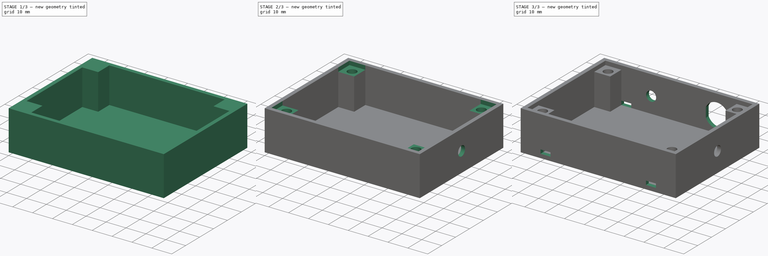
[diagram: build sequence overview — one tinted view per stage of 3, left to right]
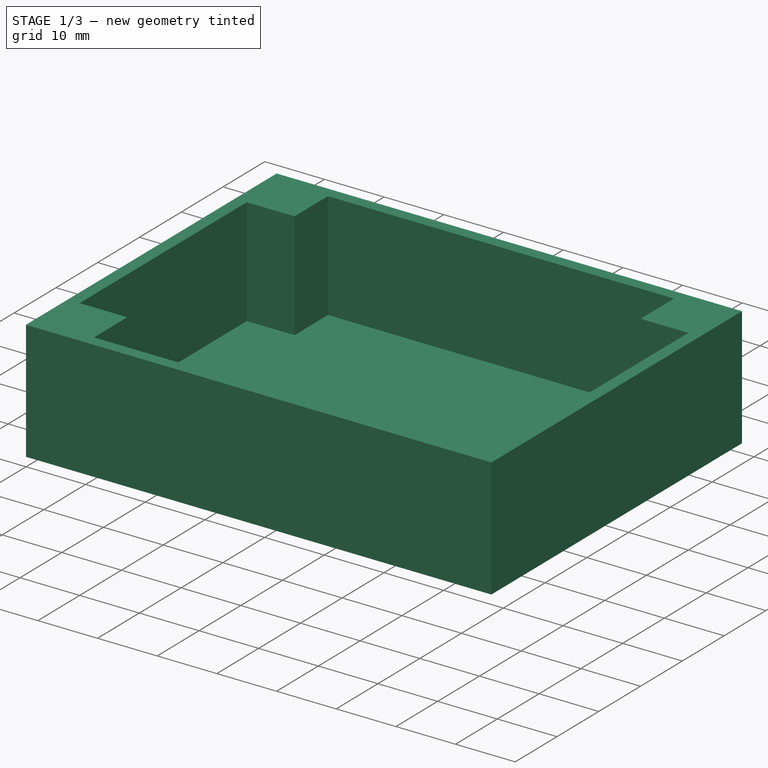
[diagram: stage 1 of 3 — iso view after this stage's code; geometry added in this stage tinted green]
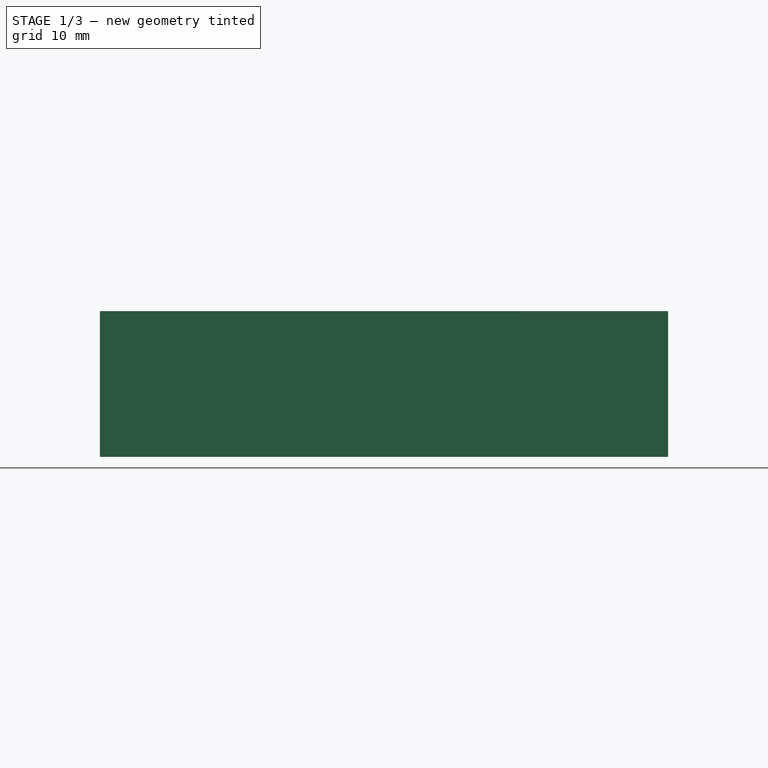
[diagram: stage 1 of 3 — front view after this stage's code; geometry added in this stage tinted green]
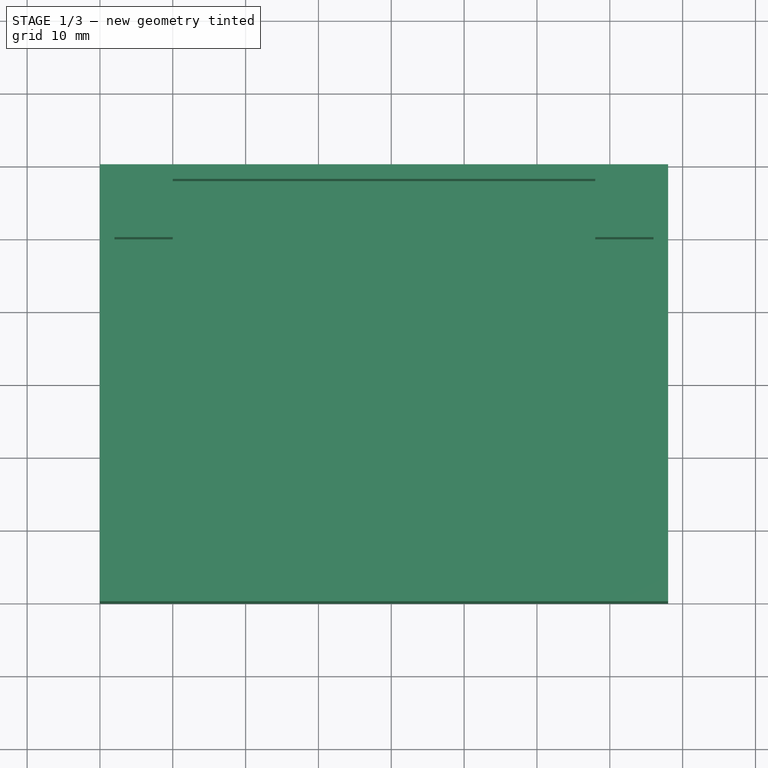
[diagram: stage 1 of 3 — top view after this stage's code; geometry added in this stage tinted green]
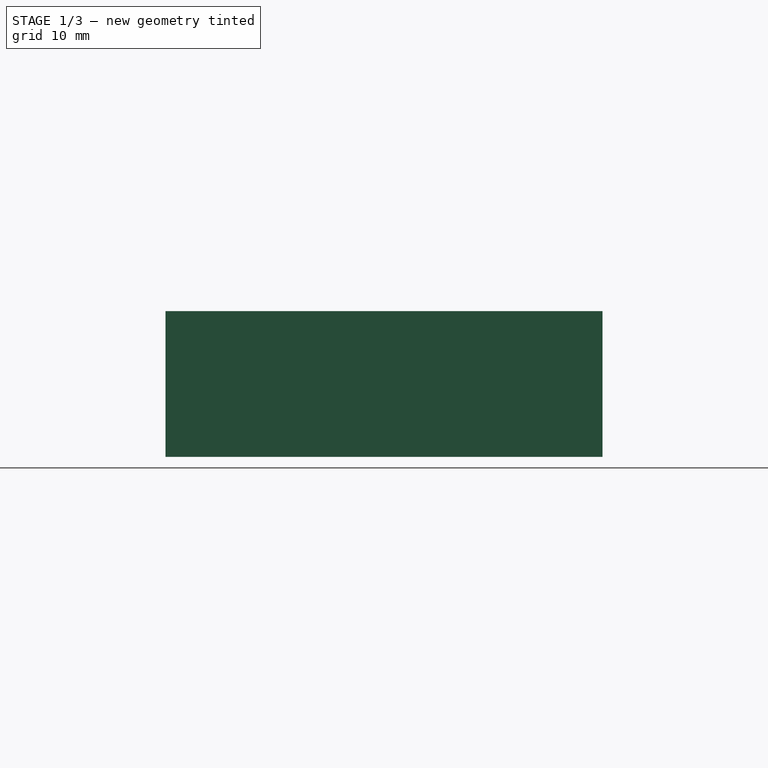
[diagram: stage 1 of 3 — right view after this stage's code; geometry added in this stage tinted green]
FCSTD DOCUMENT  (FreeCAD 1.0R38641 +678 (Git))
Label: led-controller
License: All rights reserved
LicenseURL: http://en.wikipedia.org/wiki/All_rights_reserved
objects: Sketcher::SketchObject×7, PartDesign::Pocket×6, PartDesign::Pad×1, PartDesign::Body×1
note: 36 computed .brp shape members not serialized (recipe doc carries the construction recipe); baked Part::Feature solids carry a one-line shape summary decoded from their .brp

FEATURE [Sketcher::SketchObject] Sketch
  ArcFitTolerance = 0
  AttachmentSupport = -> [XY_Plane]
  FullyConstrained = true
  MakeInternals = false
  MapMode = 5
  sketch-geometry (4):
    g0: LineSegment StartX=0 StartY=0 StartZ=0 EndX=78 EndY=0 EndZ=0
    g1: LineSegment StartX=78 StartY=0 StartZ=0 EndX=78 EndY=60 EndZ=0
    g2: LineSegment StartX=78 StartY=60 StartZ=0 EndX=0 EndY=60 EndZ=0
    g3: LineSegment StartX=0 StartY=60 StartZ=0 EndX=0 EndY=0 EndZ=0
  constraints (11):
    c: Coincident(g0,g1)
    c: Coincident(g1,g2)
    c: Coincident(g2,g3)
    c: Coincident(g3,g0)
    c: Horizontal(g0)
    c: Horizontal(g2)
    c: Vertical(g1)
    c: Vertical(g3)
    c: Coincident(g0,g-1)
    c: DistanceX(g0,g0) = 78
    c: DistanceY(g1,g1) = 60
FEATURE [PartDesign::Pad] Pad
  Direction = (0,0,1)
  Length = 20
  Length2 = 10
  Profile = -> Sketch
  ReferenceAxis = -> Sketch [N_Axis]
  Suppressed = false
  Type = 0
FEATURE [Sketcher::SketchObject] Sketch001
  ArcFitTolerance = 0
  AttachmentSupport = -> [Pad]
  ExternalGeometry = -> [Pad]
  FullyConstrained = true
  MakeInternals = false
  MapMode = 5
  Placement = pos=(0,0,20) rot=(0,0,1;0rad)
  sketch-geometry (12):
    g0: LineSegment StartX=2 StartY=50 StartZ=0 EndX=2 EndY=10 EndZ=0
    g1: LineSegment StartX=2 StartY=10 StartZ=0 EndX=10 EndY=10 EndZ=0
    g2: LineSegment StartX=10 StartY=10 StartZ=0 EndX=10 EndY=2 EndZ=0
    g3: LineSegment StartX=10 StartY=2 StartZ=0 EndX=68 EndY=2 EndZ=0
    g4: LineSegment StartX=68 StartY=2 StartZ=0 EndX=68 EndY=10 EndZ=0
    g5: LineSegment StartX=68 StartY=10 StartZ=0 EndX=76 EndY=10 EndZ=0
    g6: LineSegment StartX=76 StartY=10 StartZ=0 EndX=76 EndY=50 EndZ=0
    g7: LineSegment StartX=76 StartY=50 StartZ=0 EndX=68 EndY=50 EndZ=0
    g8: LineSegment StartX=68 StartY=50 StartZ=0 EndX=68 EndY=58 EndZ=0
    g9: LineSegment StartX=68 StartY=58 StartZ=0 EndX=10 EndY=58 EndZ=0
    g10: LineSegment StartX=10 StartY=58 StartZ=0 EndX=10 EndY=50 EndZ=0
    g11: LineSegment StartX=10 StartY=50 StartZ=0 EndX=2 EndY=50 EndZ=0
  constraints (36):
    c: Vertical(g0)
    c: Coincident(g1,g0)
    c: Horizontal(g1)
    c: Coincident(g2,g1)
    c: Vertical(g2)
    c: Coincident(g3,g2)
    c: Horizontal(g3)
    c: Coincident(g4,g3)
    c: Vertical(g4)
    c: Coincident(g5,g4)
    c: Horizontal(g5)
    c: Coincident(g6,g5)
    c: Vertical(g6)
    c: Coincident(g7,g6)
    c: Horizontal(g7)
    c: Coincident(g8,g7)
    c: Vertical(g8)
    c: Coincident(g9,g8)
    c: Horizontal(g9)
    c: Coincident(g10,g9)
    c: Vertical(g10)
    c: Coincident(g11,g10)
    c: Coincident(g11,g0)
    c: Horizontal(g11)
    c: Equal(g11,g1)
    c: Equal(g1,g2)
    c: Equal(g2,g4)
    c: Equal(g4,g5)
    c: Equal(g5,g7)
    c: Equal(g7,g8)
    c: Equal(g8,g10)
    c: DistanceY(g-6,g2) = 2
    c: DistanceX(g-4,g0) = 2
    c: DistanceY(g2,g9) = 56
    c: DistanceX(g0,g5) = 74
    c: DistanceX(g1,g1) = 8
FEATURE [PartDesign::Pocket] Pocket  label="Inside hole"
  BaseFeature = -> Pad
  Direction = (0,0,-1)
  Length = 18
  Length2 = 5
  Profile = -> Sketch001
  ReferenceAxis = -> Sketch001 [N_Axis]
  Suppressed = false
  Type = 0
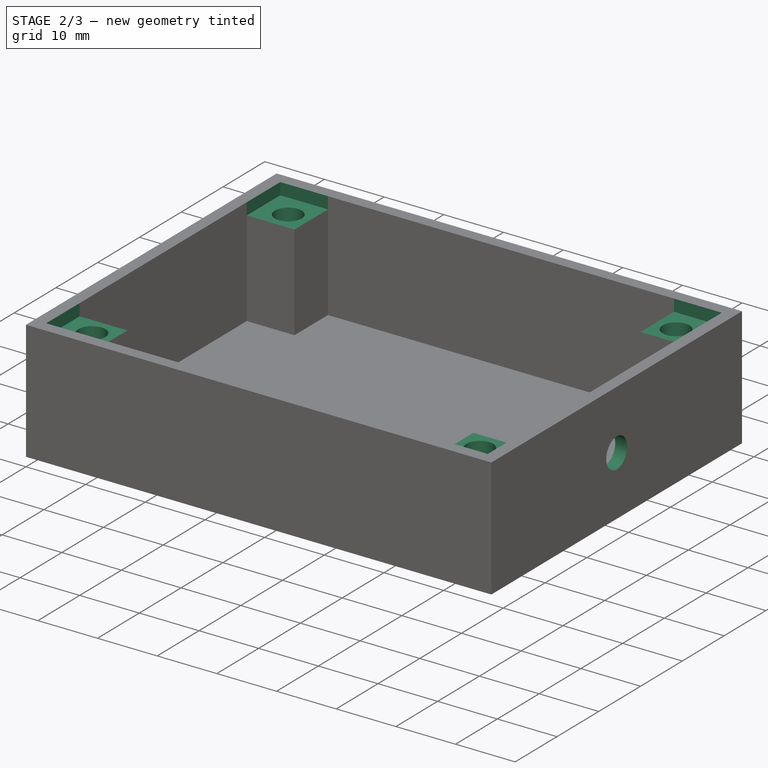
[diagram: stage 2 of 3 — iso view after this stage's code; geometry added in this stage tinted green]
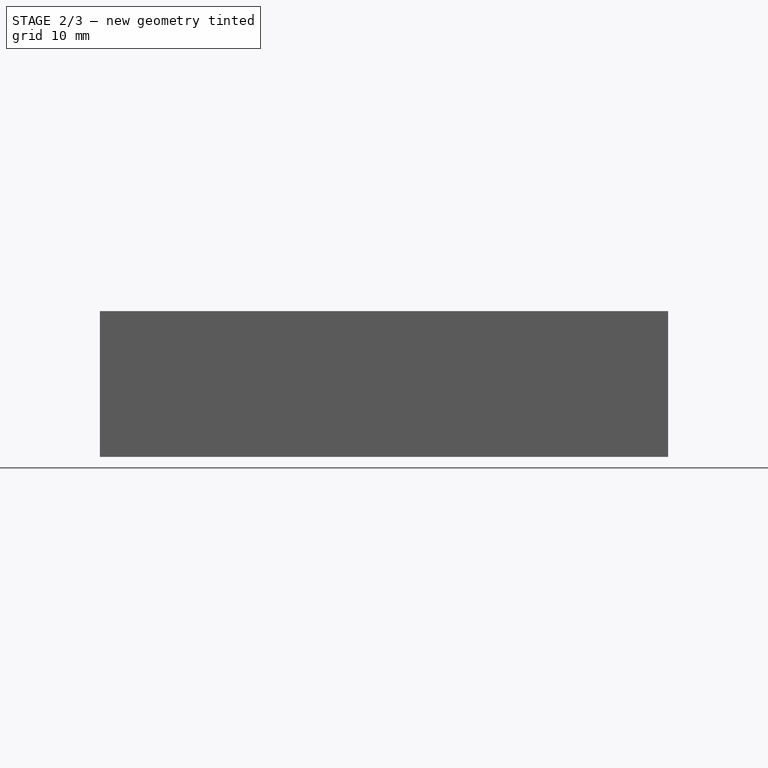
[diagram: stage 2 of 3 — front view after this stage's code; geometry added in this stage tinted green]
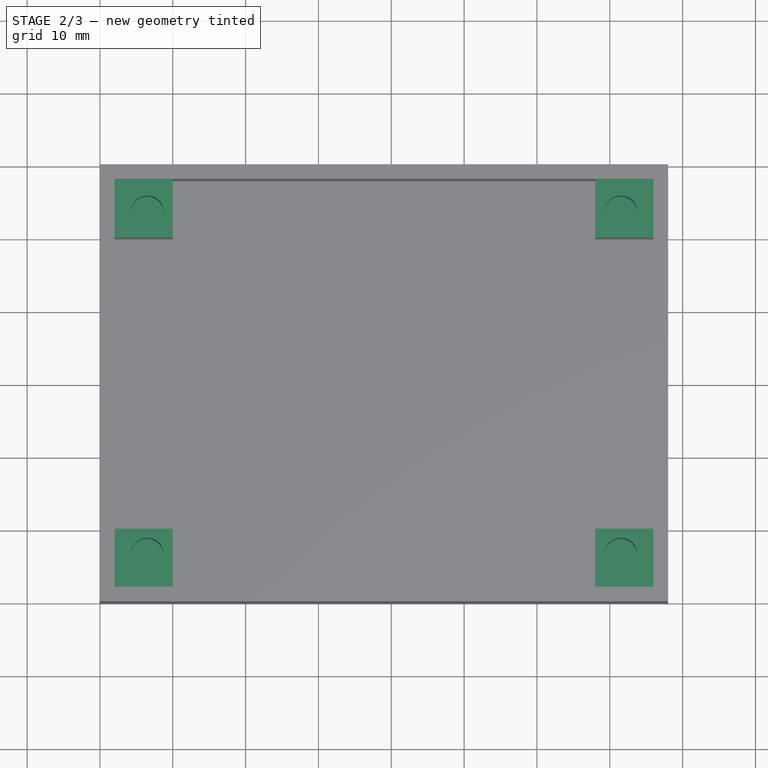
[diagram: stage 2 of 3 — top view after this stage's code; geometry added in this stage tinted green]
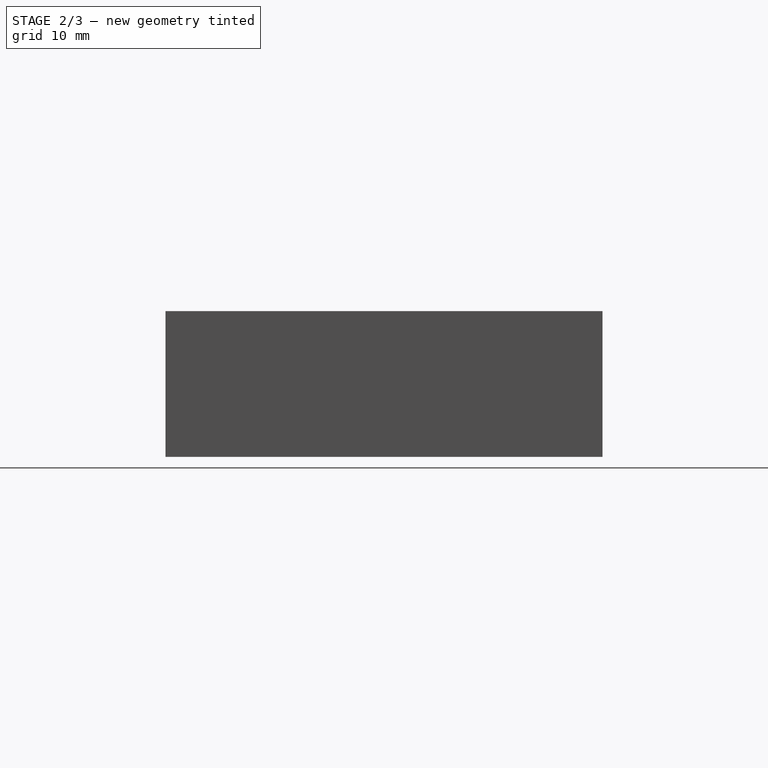
[diagram: stage 2 of 3 — right view after this stage's code; geometry added in this stage tinted green]
FEATURE [Sketcher::SketchObject] Sketch002
  ArcFitTolerance = 0
  AttachmentSupport = -> [Pocket]
  ExternalGeometry = -> [Pocket]
  FullyConstrained = true
  MakeInternals = false
  MapMode = 5
  Placement = pos=(0,0,20) rot=(0,0,1;0rad)
  sketch-geometry (4):
    g0: LineSegment StartX=2 StartY=58 StartZ=0 EndX=76 EndY=58 EndZ=0
    g1: LineSegment StartX=76 StartY=58 StartZ=0 EndX=76 EndY=2 EndZ=0
    g2: LineSegment StartX=76 StartY=2 StartZ=0 EndX=2 EndY=2 EndZ=0
    g3: LineSegment StartX=2 StartY=2 StartZ=0 EndX=2 EndY=58 EndZ=0
  constraints (12):
    c: Coincident(g0,g1)
    c: Coincident(g1,g2)
    c: Coincident(g2,g3)
    c: Coincident(g3,g0)
    c: Horizontal(g0)
    c: Horizontal(g2)
    c: Vertical(g1)
    c: Vertical(g3)
    c: PointOnObject(g-9,g0)
    c: PointOnObject(g-7,g3)
    c: PointOnObject(g-10,g2)
    c: PointOnObject(g-8,g1)
FEATURE [PartDesign::Pocket] Pocket001  label="PCB hole"
  BaseFeature = -> Pocket
  Direction = (0,0,-1)
  Length = 2
  Length2 = 5
  Profile = -> Sketch002
  ReferenceAxis = -> Sketch002 [N_Axis]
  Suppressed = false
  Type = 0
FEATURE [Sketcher::SketchObject] Sketch003
  ArcFitTolerance = 0
  AttachmentSupport = -> [Pocket001]
  ExternalGeometry = -> [Pocket001]
  FullyConstrained = true
  MakeInternals = false
  MapMode = 5
  Placement = pos=(0,0,18) rot=(0,0,1;0rad)
  sketch-geometry (12):
    g0: LineSegment [constr] StartX=6.5 StartY=53.5 StartZ=0 EndX=71.5 EndY=53.5 EndZ=0
    g1: LineSegment [constr] StartX=71.5 StartY=53.5 StartZ=0 EndX=71.5 EndY=6.5 EndZ=0
    g2: LineSegment [constr] StartX=71.5 StartY=6.5 StartZ=0 EndX=6.5 EndY=6.5 EndZ=0
    g3: LineSegment [constr] StartX=6.5 StartY=6.5 StartZ=0 EndX=6.5 EndY=53.5 EndZ=0
    g4: LineSegment [constr] StartX=6.5 StartY=53.5 StartZ=0 EndX=2 EndY=53.5 EndZ=0
    g5: LineSegment [constr] StartX=6.5 StartY=53.5 StartZ=0 EndX=6.5 EndY=58 EndZ=0
    g6: LineSegment [constr] StartX=71.5 StartY=6.5 StartZ=0 EndX=76 EndY=6.5 EndZ=0
    g7: LineSegment [constr] StartX=71.5 StartY=6.5 StartZ=0 EndX=71.5 EndY=2 EndZ=0
    g8: Circle CenterX=6.5 CenterY=53.5 CenterZ=0 NormalX=0 NormalY=0 NormalZ=1 AngleXU=0 Radius=2.25
    g9: Circle CenterX=71.5 CenterY=53.5 CenterZ=0 NormalX=0 NormalY=0 NormalZ=1 AngleXU=0 Radius=2.25
    g10: Circle CenterX=6.5 CenterY=6.5 CenterZ=0 NormalX=0 NormalY=0 NormalZ=1 AngleXU=0 Radius=2.25
    g11: Circle CenterX=71.5 CenterY=6.5 CenterZ=0 NormalX=0 NormalY=0 NormalZ=1 AngleXU=0 Radius=2.25
  constraints (32):
    c: Coincident(g0,g1)
    c: Coincident(g1,g2)
    c: Coincident(g2,g3)
    c: Coincident(g3,g0)
    c: Horizontal(g0)
    c: Horizontal(g2)
    c: Vertical(g1)
    c: Vertical(g3)
    c: Coincident(g4,g0)
    c: PointOnObject(g4,g-3)
    c: Horizontal(g4)
    c: Coincident(g5,g0)
    c: PointOnObject(g5,g-4)
    c: Vertical(g5)
    c: Coincident(g6,g1)
    c: PointOnObject(g6,g-5)
    c: Horizontal(g6)
    c: Coincident(g7,g1)
    c: PointOnObject(g7,g-6)
    c: Vertical(g7)
    c: DistanceX(g0,g0) = 65
    c: Equal(g5,g7)
    c: Equal(g6,g4)
    c: DistanceY(g3,g3) = 47
    c: Coincident(g8,g0)
    c: Coincident(g9,g0)
    c: Coincident(g10,g2)
    c: Coincident(g11,g1)
    c: Equal(g10,g8)
    c: Equal(g8,g9)
    c: Equal(g9,g11)
    c: Diameter(g9) = 4.5
FEATURE [PartDesign::Pocket] Pocket002  label="Screw holes"
  BaseFeature = -> Pocket001
  Direction = (0,0,-1)
  Length = 10
  Length2 = 5
  Profile = -> Sketch003
  ReferenceAxis = -> Sketch003 [N_Axis]
  Suppressed = false
  Type = 0
FEATURE [Sketcher::SketchObject] Sketch004
  ArcFitTolerance = 0
  AttachmentSupport = -> [Pocket002]
  ExternalGeometry = -> [Pocket002]
  FullyConstrained = true
  MakeInternals = false
  MapMode = 5
  Placement = pos=(78,0,0) rot=(0.57735,0.57735,0.57735;2.0944rad)
  sketch-geometry (5):
    g0: LineSegment [constr] StartX=0 StartY=10 StartZ=0 EndX=30 EndY=10 EndZ=0
    g1: LineSegment [constr] StartX=30 StartY=10 StartZ=0 EndX=60 EndY=10 EndZ=0
    g2: LineSegment [constr] StartX=30 StartY=20 StartZ=0 EndX=30 EndY=10 EndZ=0
    g3: LineSegment [constr] StartX=30 StartY=10 StartZ=0 EndX=30 EndY=0 EndZ=0
    g4: Circle CenterX=30 CenterY=10 CenterZ=0 NormalX=0 NormalY=0 NormalZ=1 AngleXU=0 Radius=2.5
  constraints (15):
    c: PointOnObject(g0,g-6)
    c: Horizontal(g0)
    c: Coincident(g1,g0)
    c: PointOnObject(g1,g-4)
    c: Horizontal(g1)
    c: PointOnObject(g2,g-3)
    c: Coincident(g2,g0)
    c: Coincident(g3,g0)
    c: PointOnObject(g3,g-5)
    c: Vertical(g3)
    c: Vertical(g2)
    c: Equal(g2,g3)
    c: Equal(g0,g1)
    c: Coincident(g4,g0)
    c: Diameter(g4) = 5
FEATURE [PartDesign::Pocket] Pocket003  label="LED cables"
  BaseFeature = -> Pocket002
  Direction = (-1,0,0)
  Length = 5
  Length2 = 5
  Profile = -> Sketch004
  ReferenceAxis = -> Sketch004 [N_Axis]
  Suppressed = false
  Type = 2
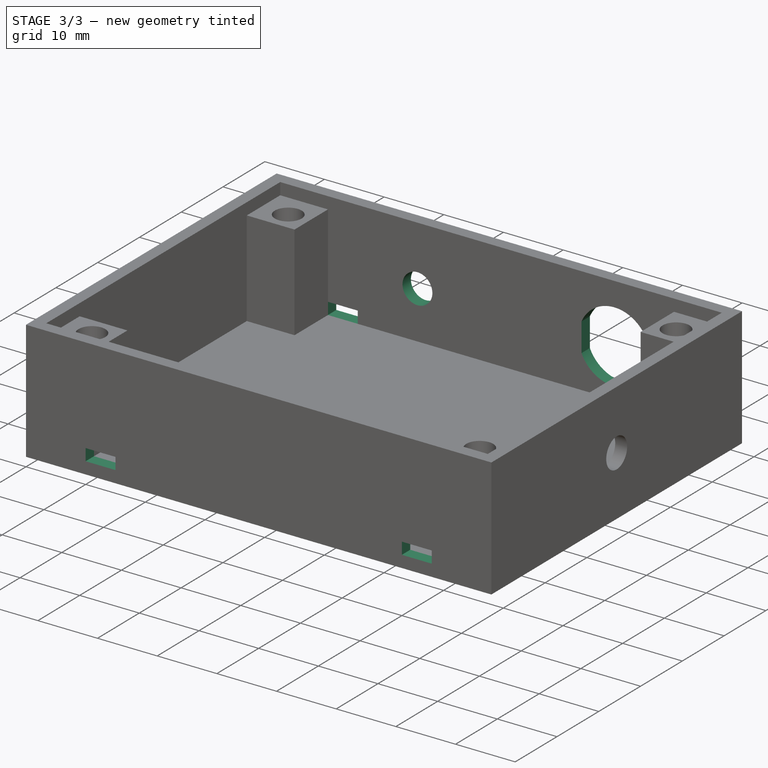
[diagram: stage 3 of 3 — iso view after this stage's code; geometry added in this stage tinted green]
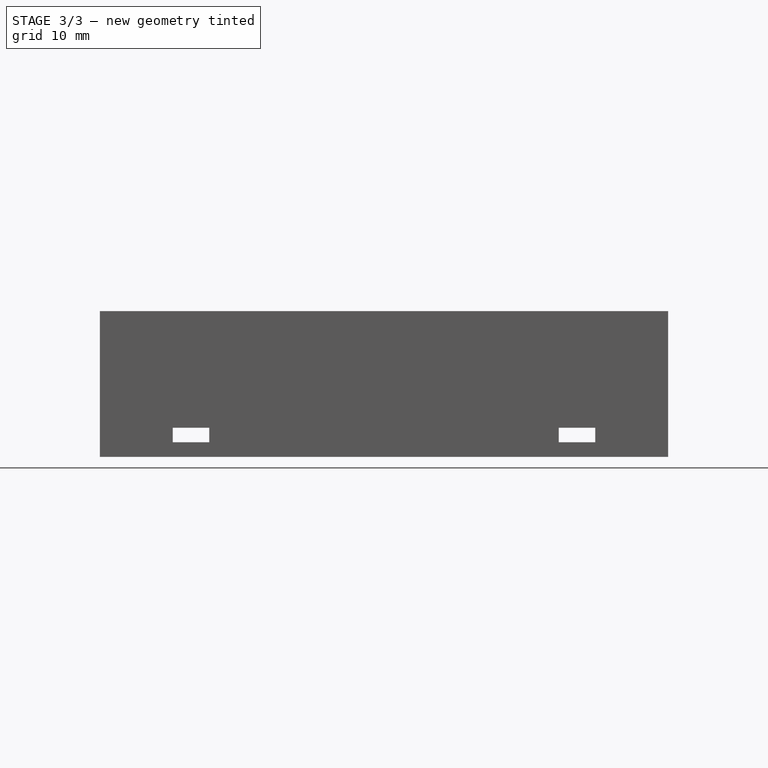
[diagram: stage 3 of 3 — front view after this stage's code; geometry added in this stage tinted green]
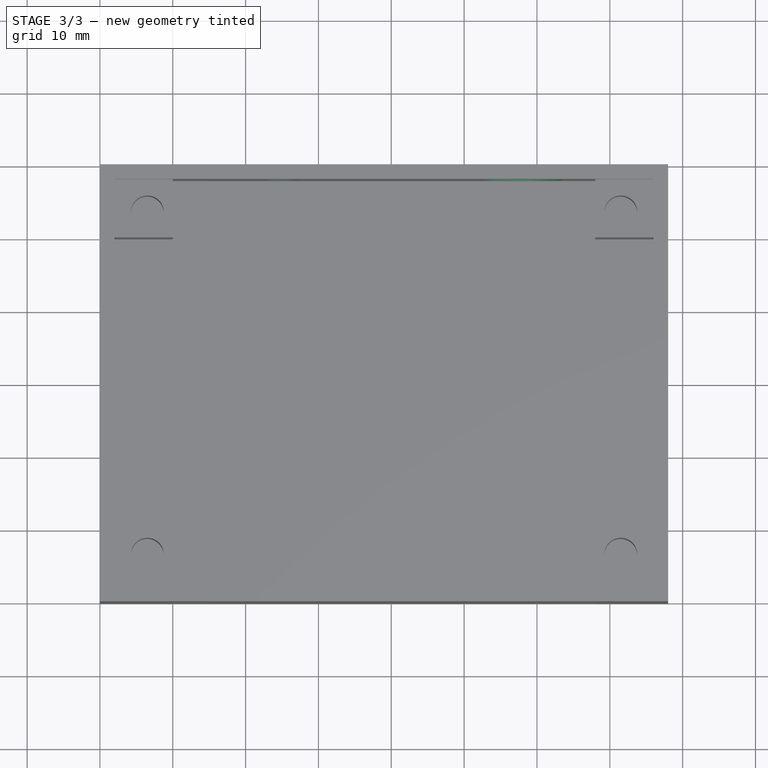
[diagram: stage 3 of 3 — top view after this stage's code; geometry added in this stage tinted green]
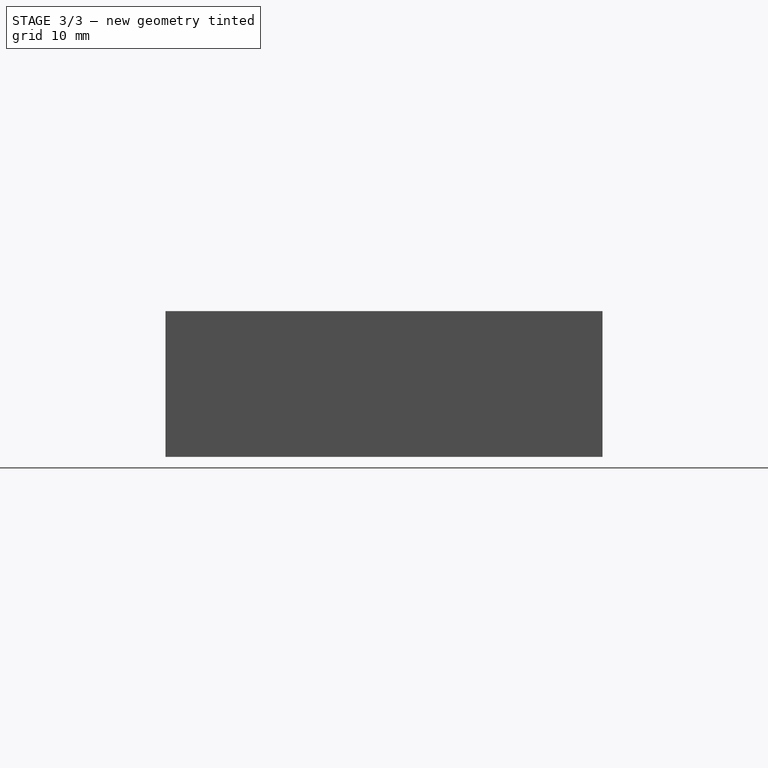
[diagram: stage 3 of 3 — right view after this stage's code; geometry added in this stage tinted green]
FEATURE [Sketcher::SketchObject] Sketch005
  ArcFitTolerance = 0
  AttachmentSupport = -> [Pocket003]
  ExternalGeometry = -> [Pocket003]
  FullyConstrained = true
  MakeInternals = false
  MapMode = 5
  Placement = pos=(0,60,0) rot=(0,0.707107,0.707107;3.14159rad)
  sketch-geometry (11):
    g0: LineSegment [constr] StartX=-78 StartY=20 StartZ=0 EndX=-78 EndY=10 EndZ=0
    g1: LineSegment [constr] StartX=-78 StartY=10 StartZ=0 EndX=-78 EndY=0 EndZ=0
    g2: LineSegment [constr] StartX=-78 StartY=10 StartZ=0 EndX=-58 EndY=10 EndZ=0
    g3: LineSegment [constr] StartX=-58 StartY=10 StartZ=0 EndX=-25 EndY=10 EndZ=0
    g4: LineSegment [constr] StartX=-25 StartY=10 StartZ=0 EndX=0 EndY=10 EndZ=0
    g5: Circle [constr] CenterX=-58 CenterY=10 CenterZ=0 NormalX=0 NormalY=0 NormalZ=1 AngleXU=0 Radius=6
    g6: LineSegment StartX=-63.5 StartY=7.60208 StartZ=0 EndX=-63.5 EndY=12.3979 EndZ=0
    g7: LineSegment StartX=-52.5 StartY=7.60208 StartZ=0 EndX=-52.5 EndY=12.3979 EndZ=0
    g8: ArcOfCircle CenterX=-58 CenterY=10 CenterZ=0 NormalX=0 NormalY=0 NormalZ=1 AngleXU=0 Radius=6 StartAngle=3.55273 EndAngle=5.87205
    g9: ArcOfCircle CenterX=-58 CenterY=10 CenterZ=0 NormalX=0 NormalY=0 NormalZ=1 AngleXU=0 Radius=6 StartAngle=0.411138 EndAngle=2.73045
    g10: Circle CenterX=-25 CenterY=10 CenterZ=0 NormalX=0 NormalY=0 NormalZ=1 AngleXU=0 Radius=2.5
  constraints (30):
    c: Coincident(g0,g-3)
    c: PointOnObject(g0,g-3)
    c: Coincident(g1,g0)
    c: Coincident(g1,g-3)
    c: Equal(g1,g0)
    c: Coincident(g2,g0)
    c: Horizontal(g2)
    c: Coincident(g3,g2)
    c: Horizontal(g3)
    c: Coincident(g4,g3)
    c: PointOnObject(g4,g-4)
    c: Horizontal(g4)
    c: Coincident(g5,g2)
    c: DistanceX(g2,g2) = 20
    c: Diameter(g5) = 12
    c: PointOnObject(g6,g5)
    c: PointOnObject(g6,g5)
    c: Equal(g7,g6)
    c: Coincident(g8,g2)
    c: Coincident(g8,g6)
    c: Coincident(g8,g7)
    c: Coincident(g9,g8)
    c: Coincident(g9,g6)
    c: Coincident(g9,g7)
    c: Coincident(g10,g3)
    c: Diameter(g10) = 5
    c: DistanceX(g4,g4) = 25
    c: Vertical(g6)
    c: Vertical(g7)
    c: DistanceX(g6,g7) = 11
FEATURE [PartDesign::Pocket] Pocket004  label="Power"
  BaseFeature = -> Pocket003
  Direction = (0,-1,2e-16)
  Length = 5
  Length2 = 5
  Profile = -> Sketch005
  ReferenceAxis = -> Sketch005 [N_Axis]
  Suppressed = false
  Type = 2
FEATURE [Sketcher::SketchObject] Sketch006
  ArcFitTolerance = 0
  AttachmentSupport = -> [Pocket004]
  ExternalGeometry = -> [Pocket004]
  FullyConstrained = true
  MakeInternals = false
  MapMode = 5
  Placement = pos=(0,60,0) rot=(0,0.707107,0.707107;3.14159rad)
  sketch-geometry (8):
    g0: LineSegment StartX=-68 StartY=4 StartZ=0 EndX=-68 EndY=2 EndZ=0
    g1: LineSegment StartX=-68 StartY=2 StartZ=0 EndX=-63 EndY=2 EndZ=0
    g2: LineSegment StartX=-63 StartY=2 StartZ=0 EndX=-63 EndY=4 EndZ=0
    g3: LineSegment StartX=-63 StartY=4 StartZ=0 EndX=-68 EndY=4 EndZ=0
    g4: LineSegment StartX=-15 StartY=4 StartZ=0 EndX=-15 EndY=2 EndZ=0
    g5: LineSegment StartX=-15 StartY=2 StartZ=0 EndX=-10 EndY=2 EndZ=0
    g6: LineSegment StartX=-10 StartY=2 StartZ=0 EndX=-10 EndY=4 EndZ=0
    g7: LineSegment StartX=-10 StartY=4 StartZ=0 EndX=-15 EndY=4 EndZ=0
  constraints (24):
    c: Coincident(g0,g1)
    c: Coincident(g1,g2)
    c: Coincident(g2,g3)
    c: Coincident(g3,g0)
    c: Vertical(g0)
    c: Vertical(g2)
    c: Horizontal(g1)
    c: Horizontal(g3)
    c: Coincident(g4,g5)
    c: Coincident(g5,g6)
    c: Coincident(g6,g7)
    c: Coincident(g7,g4)
    c: Vertical(g4)
    c: Vertical(g6)
    c: Horizontal(g5)
    c: Horizontal(g7)
    c: DistanceY(g-5,g0) = 2
    c: DistanceX(g-5,g0) = 10
    c: DistanceY(g0,g0) = 2
    c: DistanceX(g1,g1) = 5
    c: DistanceY(g6,g6) = 2
    c: DistanceY(g-1,g5) = 2
    c: DistanceX(g5,g-1) = 10
    c: DistanceX(g5,g5) = 5
FEATURE [PartDesign::Pocket] Pocket005
  BaseFeature = -> Pocket004
  Direction = (0,-1,2e-16)
  Length = 5
  Length2 = 5
  Profile = -> Sketch006
  ReferenceAxis = -> Sketch006 [N_Axis]
  Suppressed = false
  Type = 1
FEATURE [PartDesign::Body] Body
  AllowCompound = false
  Group = -> [Sketch,Pad,Sketch001,Pocket,Sketch002,Pocket001,Sketch003,Pocket002,Sketch004,Pocket003,Sketch005,Pocket004,Sketch006,Pocket005]
  Origin = -> Origin
  Tip = -> Pocket005
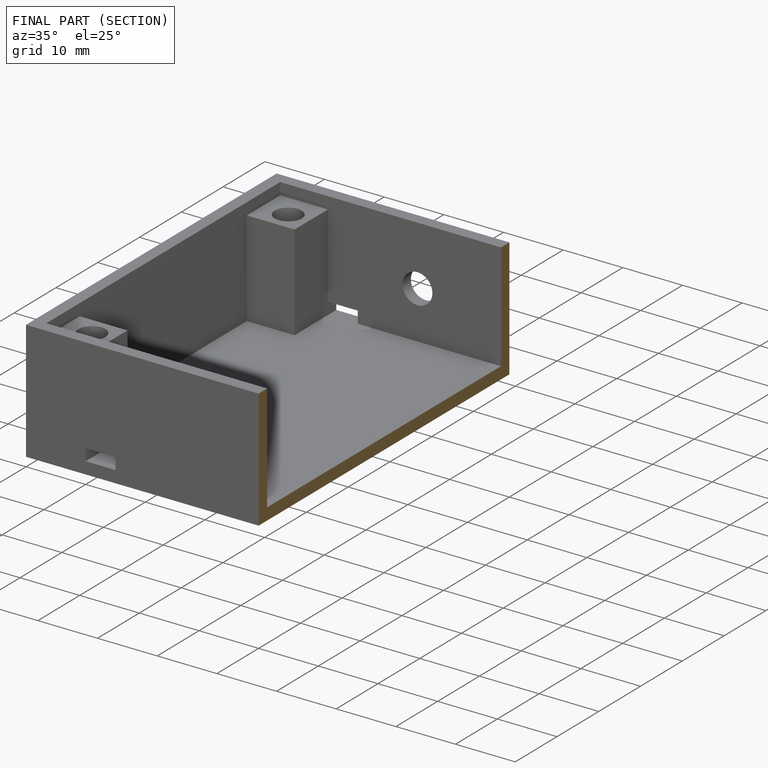
[diagram: finished part — half-section view (interior)]
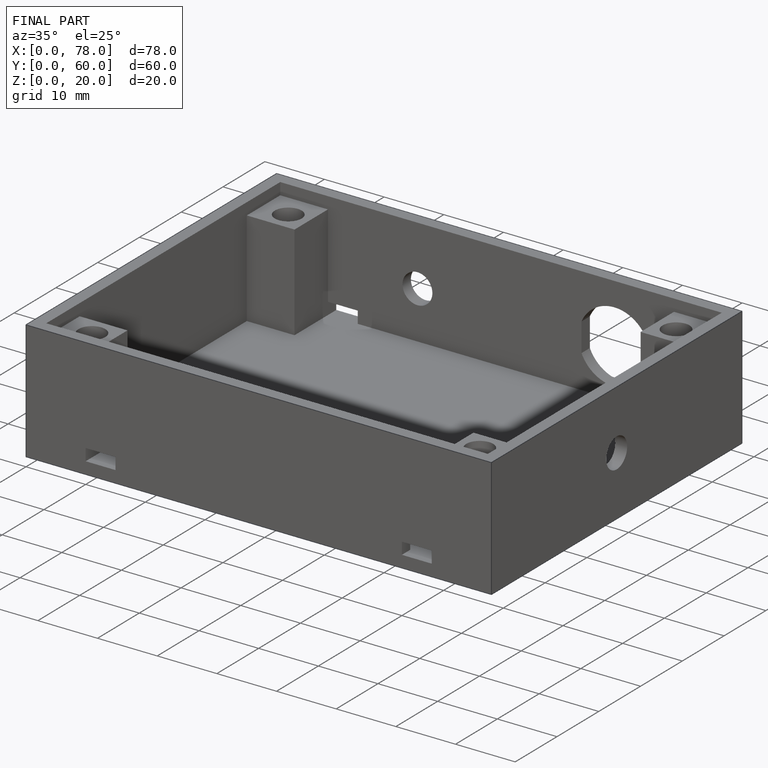
[diagram: finished part — iso view with bounding-box wireframe]
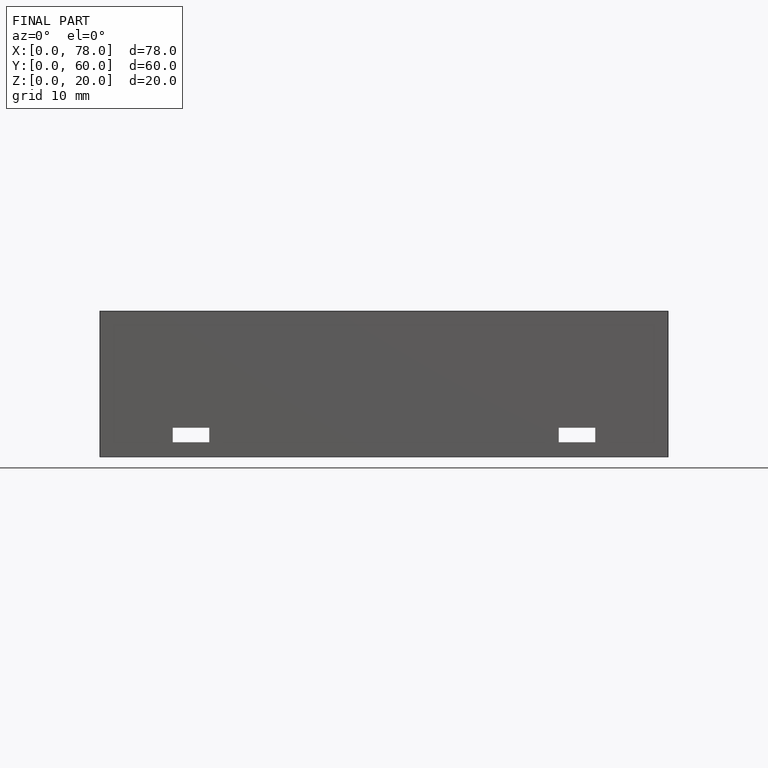
[diagram: finished part — front view with bounding-box wireframe]
